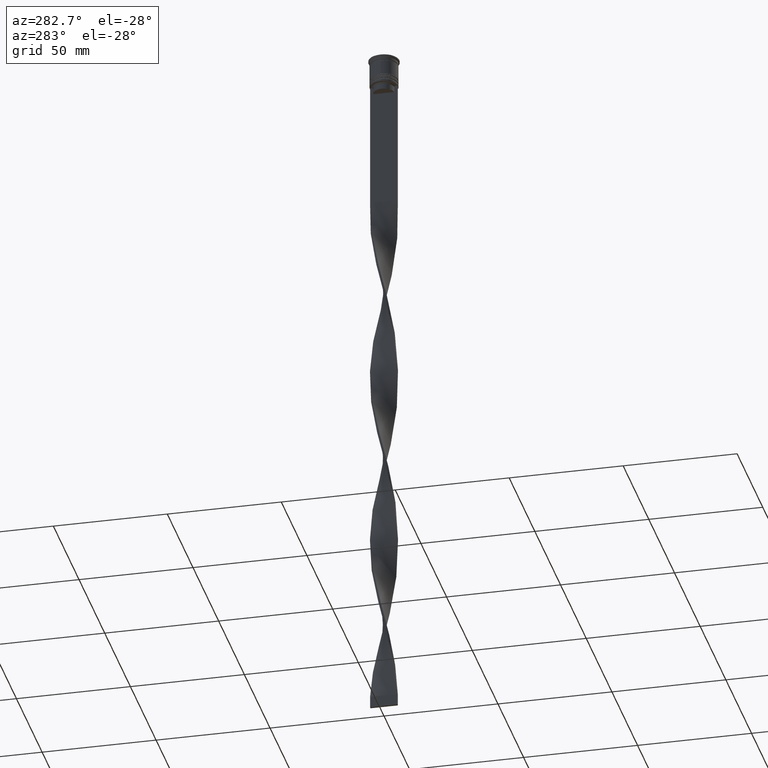
[diagram: clean part render]
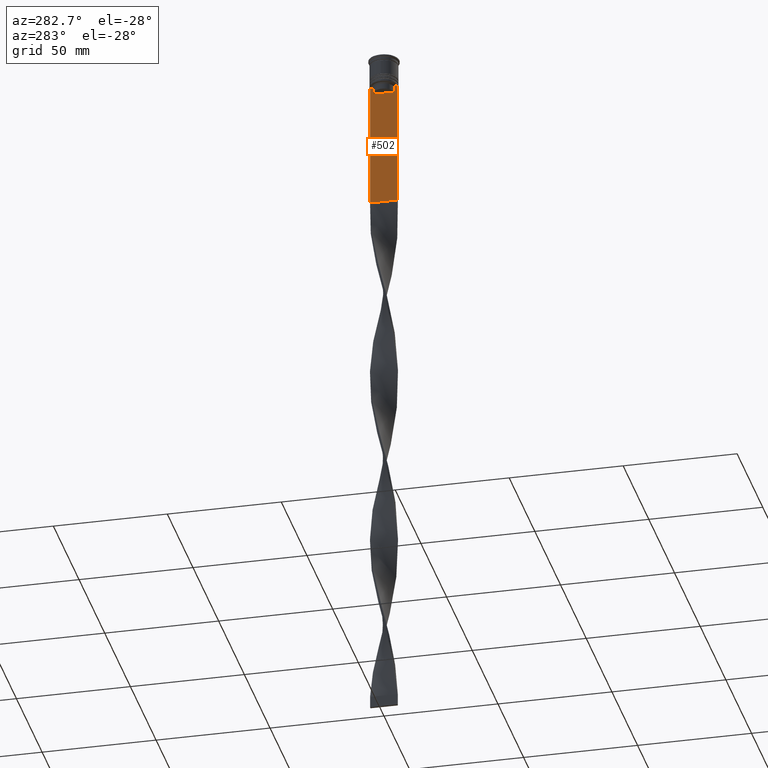
[diagram: same view with one face highlighted and labeled with its STEP entity id]
A machine part, auxiliary view. The second image highlights one B-rep face of the part: STEP entity #502.
In plain terms, the highlighted planar face has unit normal (-1, 0, 0).
Its self-contained STEP definition (entity closure, byte-faithful):
#17 = LINE ( 'NONE', #2829, #83 ) ;
#83 = VECTOR ( 'NONE', #1243, 1000.000000000000000 ) ;
#114 = PLANE ( 'NONE',  #3154 ) ;
#200 = CARTESIAN_POINT ( 'NONE',  ( -0.4999999999999997780, -4.623040125285526436, -15.50000000000000000 ) ) ;
#258 = LINE ( 'NONE', #1846, #930 ) ;
#290 = VERTEX_POINT ( 'NONE', #3819 ) ;
#314 = DIRECTION ( 'NONE',  ( 0.000000000000000000, 1.000000000000000000, 0.000000000000000000 ) ) ;
#379 = DIRECTION ( 'NONE',  ( 0.000000000000000000, 0.000000000000000000, 1.000000000000000000 ) ) ;
#381 = CARTESIAN_POINT ( 'NONE',  ( -0.4999999999999997780, 6.000000000000001776, -12.50000000000000000 ) ) ;
#400 = ORIENTED_EDGE ( 'NONE', *, *, #1227, .F. ) ;
#435 = VERTEX_POINT ( 'NONE', #3147 ) ;
#502 = ADVANCED_FACE ( 'NONE', ( #682 ), #114, .T. ) ;
#508 = B_SPLINE_CURVE_WITH_KNOTS ( 'NONE', 3,
 ( #2284, #1963, #1744, #2658 ),
 .UNSPECIFIED., .F., .F.,
 ( 4, 4 ),
 ( 0.02203698174624551046, 0.02275222543365894301 ),
 .UNSPECIFIED. ) ;
#588 = EDGE_CURVE ( 'NONE', #1403, #435, #508, .T. ) ;
#671 = VERTEX_POINT ( 'NONE', #3026 ) ;
#682 = FACE_OUTER_BOUND ( 'NONE', #2258, .T. ) ;
#800 = VECTOR ( 'NONE', #2404, 1000.000000000000000 ) ;
#870 = VECTOR ( 'NONE', #314, 1000.000000000000000 ) ;
#879 = CARTESIAN_POINT ( 'NONE',  ( -0.4999999999999997780, -6.000000000000000000, -12.50000000000000000 ) ) ;
#887 = VERTEX_POINT ( 'NONE', #1579 ) ;
#930 = VECTOR ( 'NONE', #4016, 1000.000000000000000 ) ;
#956 = EDGE_CURVE ( 'NONE', #2382, #290, #2455, .T. ) ;
#1030 = CARTESIAN_POINT ( 'NONE',  ( -0.4999999999999997780, 4.623040125285526436, -15.50000000000000000 ) ) ;
#1140 = CARTESIAN_POINT ( 'NONE',  ( -0.4999999999999997780, -6.000000000000000000, -12.50000000000000000 ) ) ;
#1195 = CARTESIAN_POINT ( 'NONE',  ( -0.4999999999999997780, 6.000000000000000888, -0.4584054212077061097 ) ) ;
#1227 = EDGE_CURVE ( 'NONE', #1675, #1403, #1981, .T. ) ;
#1234 = DIRECTION ( 'NONE',  ( 0.000000000000000000, 0.000000000000000000, -1.000000000000000000 ) ) ;
#1243 = DIRECTION ( 'NONE',  ( 0.000000000000000000, -1.000000000000000000, 0.000000000000000000 ) ) ;
#1368 = CARTESIAN_POINT ( 'NONE',  ( -0.4999999999999997780, -6.000000000000000000, -0.4584054212077061097 ) ) ;
#1390 = ORIENTED_EDGE ( 'NONE', *, *, #2815, .F. ) ;
#1403 = VERTEX_POINT ( 'NONE', #3872 ) ;
#1422 = ORIENTED_EDGE ( 'NONE', *, *, #956, .T. ) ;
#1454 = VERTEX_POINT ( 'NONE', #1740 ) ;
#1479 = ORIENTED_EDGE ( 'NONE', *, *, #588, .F. ) ;
#1579 = CARTESIAN_POINT ( 'NONE',  ( -0.4999999999999997780, 4.623040125285526436, -13.00000000000000178 ) ) ;
#1675 = VERTEX_POINT ( 'NONE', #200 ) ;
#1740 = CARTESIAN_POINT ( 'NONE',  ( -0.4999999999999997780, 5.125670687822231564, -12.50000000000000000 ) ) ;
#1744 = CARTESIAN_POINT ( 'NONE',  ( -0.4999999999999997780, -4.958169719475986170, -12.66670967060858111 ) ) ;
#1771 = VECTOR ( 'NONE', #1234, 1000.000000000000000 ) ;
#1774 = VECTOR ( 'NONE', #3635, 1000.000000000000000 ) ;
#1842 = CARTESIAN_POINT ( 'NONE',  ( -0.4999999999999997780, -6.000000000000000000, -68.00000000000000000 ) ) ;
#1846 = CARTESIAN_POINT ( 'NONE',  ( -0.4999999999999997780, 4.623040125285526436, 0.000000000000000000 ) ) ;
#1902 = DIRECTION ( 'NONE',  ( -0.000000000000000000, -0.000000000000000000, 1.000000000000000000 ) ) ;
#1935 = VERTEX_POINT ( 'NONE', #1030 ) ;
#1942 = CARTESIAN_POINT ( 'NONE',  ( -0.4999999999999997780, 4.623040125285526436, -13.00000000000000178 ) ) ;
#1963 = CARTESIAN_POINT ( 'NONE',  ( -0.4999999999999997780, -4.790630799407576745, -12.83338098686239093 ) ) ;
#1981 = LINE ( 'NONE', #2818, #2025 ) ;
#1994 = ORIENTED_EDGE ( 'NONE', *, *, #3858, .F. ) ;
#2025 = VECTOR ( 'NONE', #1902, 1000.000000000000000 ) ;
#2145 = EDGE_CURVE ( 'NONE', #2382, #1454, #2316, .T. ) ;
#2222 = CARTESIAN_POINT ( 'NONE',  ( -0.4999999999999997780, 4.790630915080666519, -12.83338087185995313 ) ) ;
#2258 = EDGE_LOOP ( 'NONE', ( #1390, #4012, #1422, #3096, #3502, #1994, #1479, #400, #3685, #2356 ) ) ;
#2284 = CARTESIAN_POINT ( 'NONE',  ( -0.4999999999999997780, -4.623040125285526436, -13.00000000000000178 ) ) ;
#2316 = LINE ( 'NONE', #1140, #1774 ) ;
#2356 = ORIENTED_EDGE ( 'NONE', *, *, #2771, .F. ) ;
#2382 = VERTEX_POINT ( 'NONE', #381 ) ;
#2404 = DIRECTION ( 'NONE',  ( 0.000000000000000000, -1.000000000000000000, 0.000000000000000000 ) ) ;
#2425 = VERTEX_POINT ( 'NONE', #2983 ) ;
#2455 = LINE ( 'NONE', #1195, #1771 ) ;
#2514 = CARTESIAN_POINT ( 'NONE',  ( -0.4999999999999997780, 4.958169823806762189, -12.66670956677067750 ) ) ;
#2579 = DIRECTION ( 'NONE',  ( -1.000000000000000000, 0.000000000000000000, 0.000000000000000000 ) ) ;
#2658 = CARTESIAN_POINT ( 'NONE',  ( -0.4999999999999997780, -5.125670687822231564, -12.50000000000000000 ) ) ;
#2771 = EDGE_CURVE ( 'NONE', #887, #1935, #258, .T. ) ;
#2815 = EDGE_CURVE ( 'NONE', #1454, #887, #2931, .T. ) ;
#2818 = CARTESIAN_POINT ( 'NONE',  ( -0.4999999999999997780, -4.623040125285526436, 0.000000000000000000 ) ) ;
#2829 = CARTESIAN_POINT ( 'NONE',  ( -0.4999999999999997780, 4.650000000000001243, -15.50000000000000000 ) ) ;
#2913 = LINE ( 'NONE', #1368, #3019 ) ;
#2919 = CARTESIAN_POINT ( 'NONE',  ( -0.4999999999999997780, -6.000000000000000000, -0.4584054212077061097 ) ) ;
#2931 = B_SPLINE_CURVE_WITH_KNOTS ( 'NONE', 3,
 ( #3200, #2514, #2222, #1942 ),
 .UNSPECIFIED., .F., .F.,
 ( 4, 4 ),
 ( 0.008759809102772707357, 0.009468778395565351919 ),
 .UNSPECIFIED. ) ;
#2983 = CARTESIAN_POINT ( 'NONE',  ( -0.4999999999999997780, -6.000000000000000000, -68.00000000000000000 ) ) ;
#3019 = VECTOR ( 'NONE', #3536, 1000.000000000000000 ) ;
#3021 = LINE ( 'NONE', #879, #800 ) ;
#3026 = CARTESIAN_POINT ( 'NONE',  ( -0.4999999999999997780, -6.000000000000000000, -12.50000000000000000 ) ) ;
#3087 = EDGE_CURVE ( 'NONE', #1935, #1675, #17, .T. ) ;
#3096 = ORIENTED_EDGE ( 'NONE', *, *, #3639, .F. ) ;
#3147 = CARTESIAN_POINT ( 'NONE',  ( -0.4999999999999997780, -5.125670687822231564, -12.50000000000000000 ) ) ;
#3154 = AXIS2_PLACEMENT_3D ( 'NONE', #2919, #2579, #379 ) ;
#3200 = CARTESIAN_POINT ( 'NONE',  ( -0.4999999999999997780, 5.125670687822231564, -12.50000000000000000 ) ) ;
#3502 = ORIENTED_EDGE ( 'NONE', *, *, #3804, .F. ) ;
#3536 = DIRECTION ( 'NONE',  ( 0.000000000000000000, 0.000000000000000000, -1.000000000000000000 ) ) ;
#3635 = DIRECTION ( 'NONE',  ( 0.000000000000000000, -1.000000000000000000, 0.000000000000000000 ) ) ;
#3639 = EDGE_CURVE ( 'NONE', #2425, #290, #3648, .T. ) ;
#3648 = LINE ( 'NONE', #1842, #870 ) ;
#3685 = ORIENTED_EDGE ( 'NONE', *, *, #3087, .F. ) ;
#3804 = EDGE_CURVE ( 'NONE', #671, #2425, #2913, .T. ) ;
#3819 = CARTESIAN_POINT ( 'NONE',  ( -0.4999999999999997780, 6.000000000000000888, -68.00000000000000000 ) ) ;
#3858 = EDGE_CURVE ( 'NONE', #435, #671, #3021, .T. ) ;
#3872 = CARTESIAN_POINT ( 'NONE',  ( -0.4999999999999997780, -4.623040125285526436, -13.00000000000000178 ) ) ;
#4012 = ORIENTED_EDGE ( 'NONE', *, *, #2145, .F. ) ;
#4016 = DIRECTION ( 'NONE',  ( 0.000000000000000000, 0.000000000000000000, -1.000000000000000000 ) ) ;